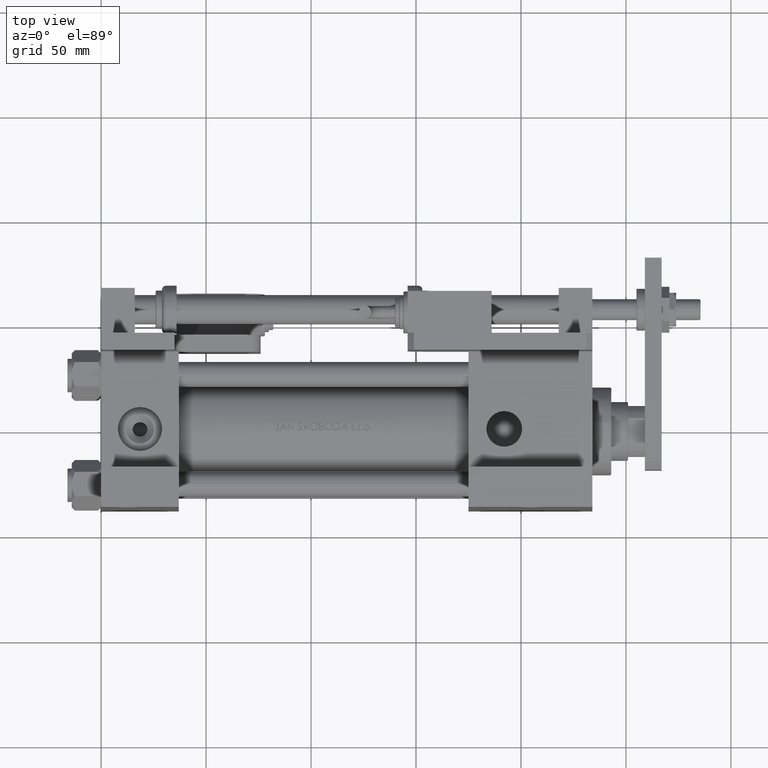
[diagram: clean part render]
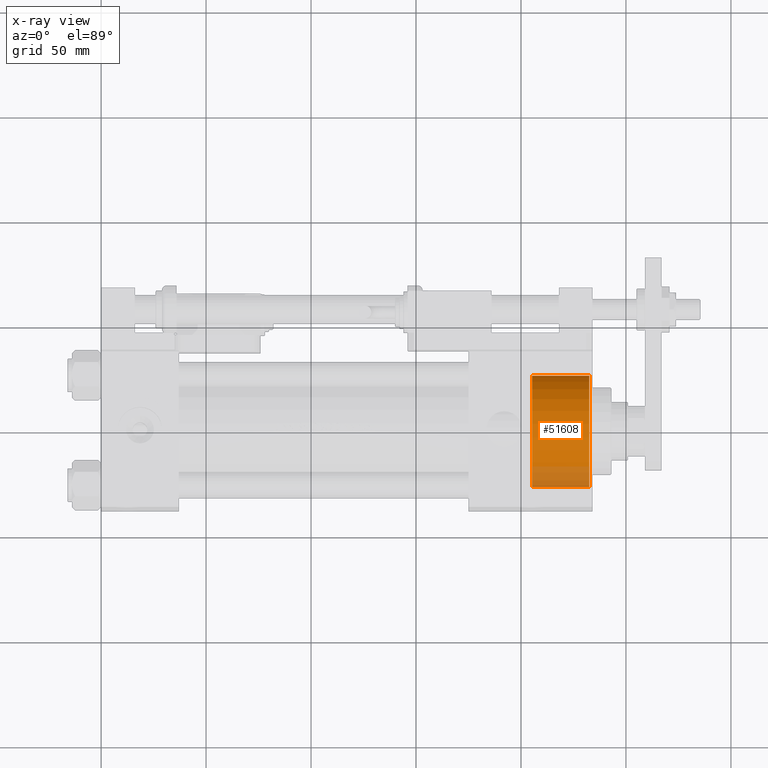
[diagram: x-ray — body ghosted, one internal face saturated and labeled with its STEP entity id]
A machine part, top view, then the same camera in x-ray: the body is ghosted and one INTERNAL B-rep face — a face not visible from any outside direction — is saturated and labeled: STEP entity #51608.
In plain terms, the highlighted cylindrical surface (partial cylindrical patch) has radius 26.5 mm, axis along (1, 0, 0).
Its self-contained STEP definition (entity closure, byte-faithful):
#156 = CARTESIAN_POINT ( 'NONE',  ( 205.3000000000000114, 0.000000000000000000, -27.00000000000000355 ) ) ;
#1136 = CARTESIAN_POINT ( 'NONE',  ( 205.3000000000000114, 0.000000000000000000, -0.5000000000000004441 ) ) ;
#2164 = AXIS2_PLACEMENT_3D ( 'NONE', #15387, #7023, #48252 ) ;
#4982 = EDGE_CURVE ( 'NONE', #16605, #25981, #36532, .T. ) ;
#7023 = DIRECTION ( 'NONE',  ( 1.000000000000000000, 0.000000000000000000, 0.000000000000000000 ) ) ;
#7343 = AXIS2_PLACEMENT_3D ( 'NONE', #1136, #30479, #17586 ) ;
#10604 = DIRECTION ( 'NONE',  ( 1.000000000000000000, 0.000000000000000000, 0.000000000000000000 ) ) ;
#15265 = CARTESIAN_POINT ( 'NONE',  ( 205.3000000000000114, 3.245314017740486554E-15, 26.00000000000000355 ) ) ;
#15387 = CARTESIAN_POINT ( 'NONE',  ( 205.3000000000000114, 0.000000000000000000, -0.5000000000000004441 ) ) ;
#16605 = VERTEX_POINT ( 'NONE', #37221 ) ;
#16879 = VECTOR ( 'NONE', #28446, 1000.000000000000000 ) ;
#17586 = DIRECTION ( 'NONE',  ( 0.000000000000000000, 0.000000000000000000, -1.000000000000000000 ) ) ;
#22872 = AXIS2_PLACEMENT_3D ( 'NONE', #43210, #10604, #42690 ) ;
#24466 = EDGE_LOOP ( 'NONE', ( #41136, #42317, #39479, #39214 ) ) ;
#25245 = EDGE_CURVE ( 'NONE', #53016, #51069, #37059, .T. ) ;
#25419 = CIRCLE ( 'NONE', #2164, 26.50000000000000355 ) ;
#25981 = VERTEX_POINT ( 'NONE', #52236 ) ;
#28446 = DIRECTION ( 'NONE',  ( 1.000000000000000000, -0.000000000000000000, -0.000000000000000000 ) ) ;
#28693 = DIRECTION ( 'NONE',  ( 1.000000000000000000, -0.000000000000000000, -0.000000000000000000 ) ) ;
#29211 = CARTESIAN_POINT ( 'NONE',  ( 232.5000000000000000, 0.000000000000000000, -27.00000000000000355 ) ) ;
#29353 = VECTOR ( 'NONE', #28693, 1000.000000000000000 ) ;
#30479 = DIRECTION ( 'NONE',  ( 1.000000000000000000, -0.000000000000000000, -0.000000000000000000 ) ) ;
#36532 = LINE ( 'NONE', #15265, #16879 ) ;
#37059 = LINE ( 'NONE', #156, #29353 ) ;
#37221 = CARTESIAN_POINT ( 'NONE',  ( 205.3000000000000114, 3.245314017740486554E-15, 26.00000000000000355 ) ) ;
#37258 = EDGE_CURVE ( 'NONE', #16605, #53016, #25419, .T. ) ;
#37518 = FACE_OUTER_BOUND ( 'NONE', #24466, .T. ) ;
#38040 = CYLINDRICAL_SURFACE ( 'NONE', #7343, 26.50000000000000355 ) ;
#38303 = EDGE_CURVE ( 'NONE', #25981, #51069, #53001, .T. ) ;
#39214 = ORIENTED_EDGE ( 'NONE', *, *, #25245, .F. ) ;
#39297 = CARTESIAN_POINT ( 'NONE',  ( 205.3000000000000114, 0.000000000000000000, -27.00000000000000355 ) ) ;
#39479 = ORIENTED_EDGE ( 'NONE', *, *, #38303, .T. ) ;
#41136 = ORIENTED_EDGE ( 'NONE', *, *, #37258, .F. ) ;
#42317 = ORIENTED_EDGE ( 'NONE', *, *, #4982, .T. ) ;
#42690 = DIRECTION ( 'NONE',  ( 0.000000000000000000, 0.000000000000000000, 1.000000000000000000 ) ) ;
#43210 = CARTESIAN_POINT ( 'NONE',  ( 232.5000000000000000, 0.000000000000000000, -0.5000000000000004441 ) ) ;
#48252 = DIRECTION ( 'NONE',  ( 0.000000000000000000, 0.000000000000000000, -1.000000000000000000 ) ) ;
#51069 = VERTEX_POINT ( 'NONE', #29211 ) ;
#51608 = ADVANCED_FACE ( 'NONE', ( #37518 ), #38040, .F. ) ;
#52236 = CARTESIAN_POINT ( 'NONE',  ( 232.5000000000000000, 3.245314017740486554E-15, 26.00000000000000355 ) ) ;
#53001 = CIRCLE ( 'NONE', #22872, 26.50000000000000355 ) ;
#53016 = VERTEX_POINT ( 'NONE', #39297 ) ;